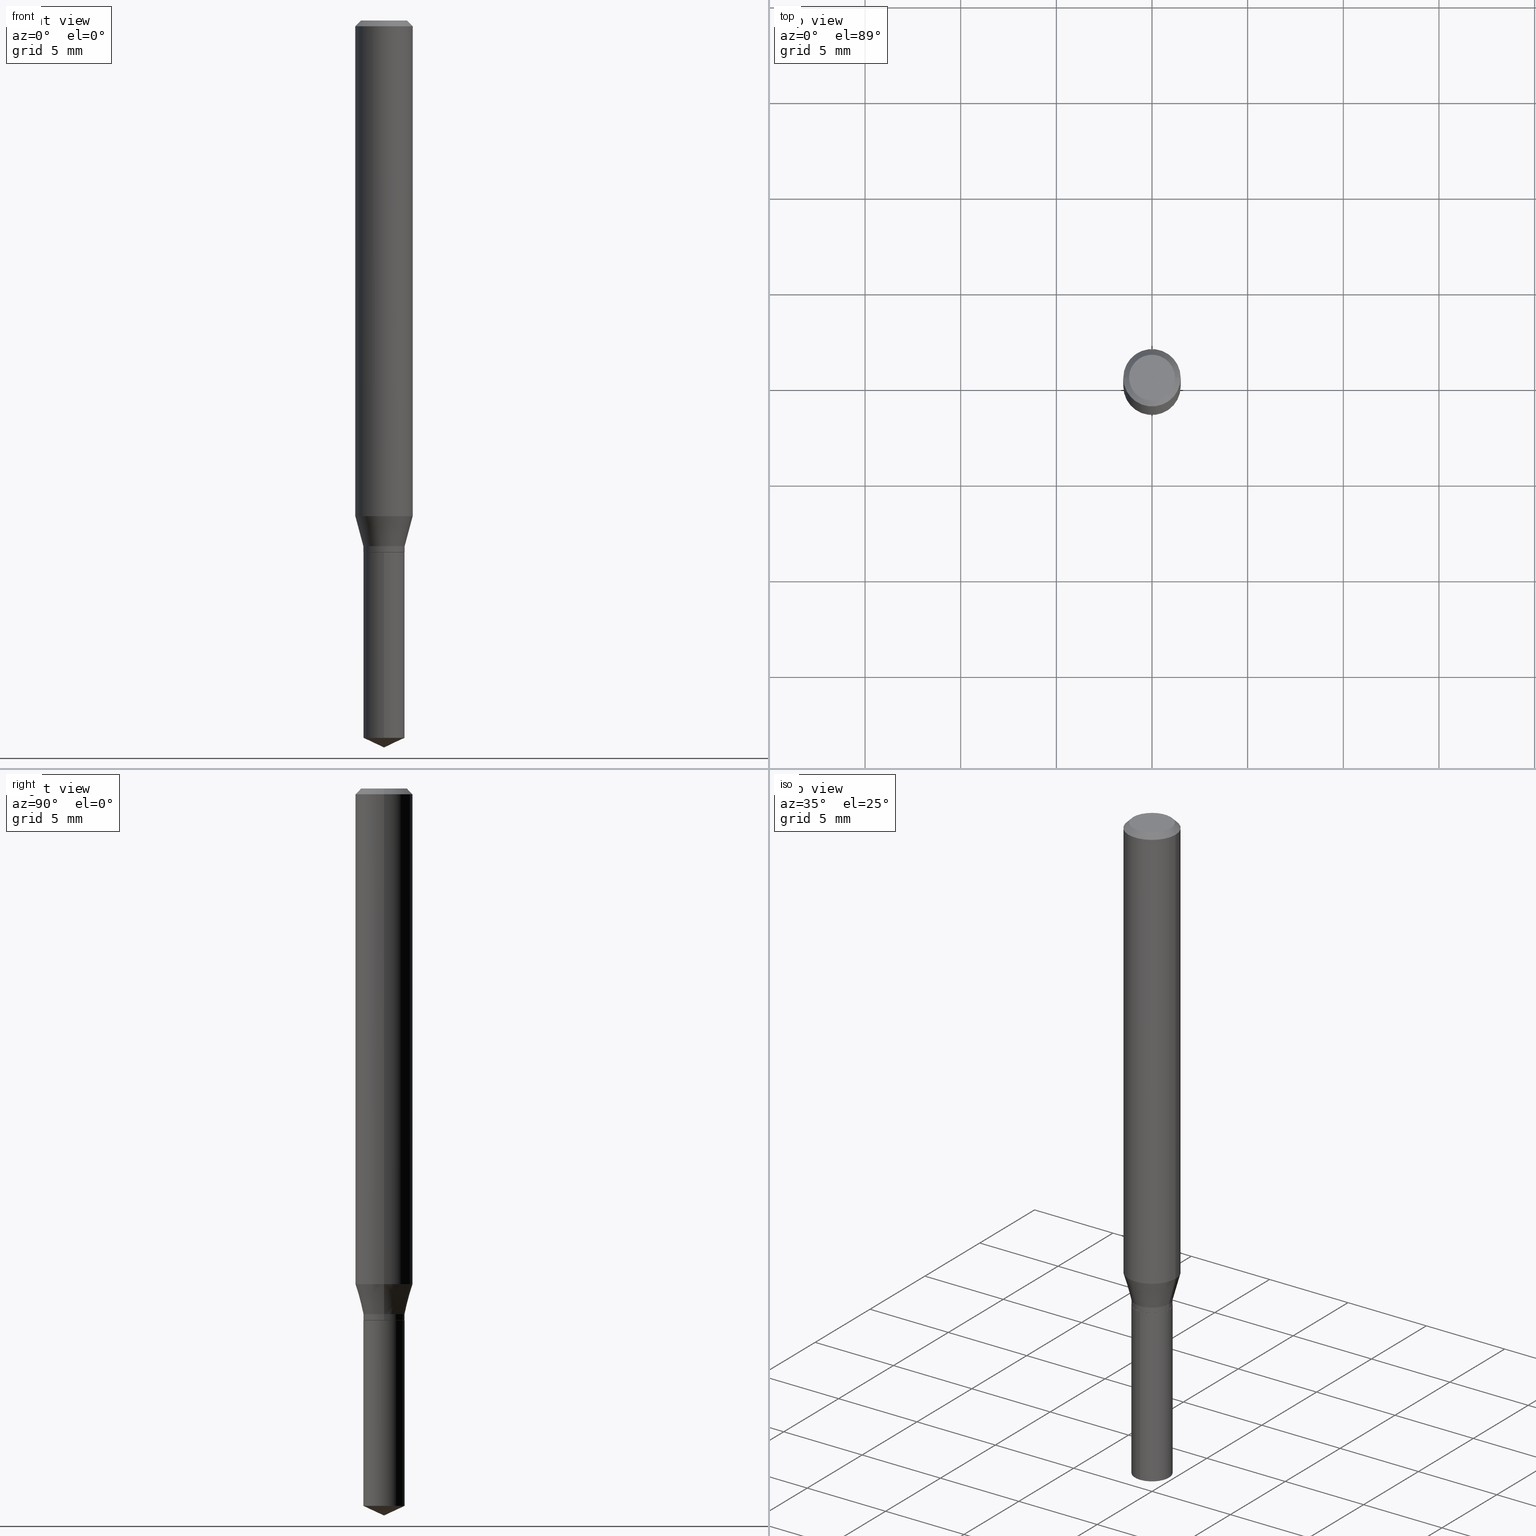
[diagram: canonical four-view strip — front | top / right | iso, engineering-drawing reading convention]
A machine part, canonical four-view strip (front | top / right | iso — engineering-drawing reading convention). The complete STEP part file that produces these views, byte-faithful:
ISO-10303-21;
HEADER;
FILE_DESCRIPTION (( 'STEP AP203' ),
    '1' );
FILE_NAME ('07620.STEP',
    '2024-04-23T23:53:18',
    ( '' ),
    ( '' ),
    'SwSTEP 2.0',
    'SolidWorks 2023',
    '' );
FILE_SCHEMA (( 'CONFIG_CONTROL_DESIGN' ));
ENDSEC;

DATA;
#1 = DIRECTION ( 'NONE',  ( -2.445458899330790108E-29, 3.491495526022433205E-15, 1.000000000000000000 ) ) ;
#2 = CARTESIAN_POINT ( 'NONE',  ( 3.658651059288795076E-29, -5.223626456482161457E-15, -1.496099999999999985 ) ) ;
#3 = FACE_OUTER_BOUND ( 'NONE', #355, .T. ) ;
#4 = VECTOR ( 'NONE', #404, 39.37007874015748143 ) ;
#5 = ADVANCED_FACE ( 'NONE', ( #406 ), #180, .F. ) ;
#6 = AXIS2_PLACEMENT_3D ( 'NONE', #176, #330, #448 ) ;
#7 = EDGE_CURVE ( 'NONE', #72, #115, #229, .T. ) ;
#8 = DIRECTION ( 'NONE',  ( -2.445468806185136597E-29, 3.491481338843145583E-15, 1.000000000000000000 ) ) ;
#9 = ORIENTED_EDGE ( 'NONE', *, *, #102, .T. ) ;
#10 = CARTESIAN_POINT ( 'NONE',  ( 2.676565608369631794E-29, -3.821426325363822773E-15, -1.094499999999999806 ) ) ;
#11 = ORIENTED_EDGE ( 'NONE', *, *, #197, .T. ) ;
#12 = CARTESIAN_POINT ( 'NONE',  ( 2.888098660104663766E-31, -4.123439461173779647E-17, -0.01181000000000007044 ) ) ;
#13 = ADVANCED_FACE ( 'NONE', ( #483 ), #130, .T. ) ;
#14 = LENGTH_MEASURE_WITH_UNIT ( LENGTH_MEASURE( 0.02539999999999999897 ), #196 );
#15 = DIRECTION ( 'NONE',  ( 0.7071067811865455743, -7.319954787623248157E-15, -0.7071067811865493491 ) ) ;
#16 = SECURITY_CLASSIFICATION_LEVEL ( 'unclassified' ) ;
#17 = ORIENTED_EDGE ( 'NONE', *, *, #273, .F. ) ;
#18 = CARTESIAN_POINT ( 'NONE',  ( -9.261924752013118283E-28, 1.322368428517963298E-13, 37.87397874015748300 ) ) ;
#19 = VERTEX_POINT ( 'NONE', #445 ) ;
#20 = CARTESIAN_POINT ( 'NONE',  ( 2.888098660104663766E-31, -4.123439461173779647E-17, -0.01181000000000007044 ) ) ;
#21 = APPROVAL_DATE_TIME ( #405, #424 ) ;
#22 = DIRECTION ( 'NONE',  ( -2.445468806185136597E-29, 3.491481338843145583E-15, 1.000000000000000000 ) ) ;
#23 = CC_DESIGN_PERSON_AND_ORGANIZATION_ASSIGNMENT ( #436, #468, ( #395 ) ) ;
#24 = CARTESIAN_POINT ( 'NONE',  ( 2.888098660104663766E-31, -4.123439461173779647E-17, -0.01181000000000007044 ) ) ;
#25 = EDGE_LOOP ( 'NONE', ( #294, #103, #482, #472 ) ) ;
#26 = DIRECTION ( 'NONE',  ( 1.000000000000000000, -6.982962677686269077E-15, 0.000000000000000000 ) ) ;
#27 = ORIENTED_EDGE ( 'NONE', *, *, #394, .F. ) ;
#28 = FACE_OUTER_BOUND ( 'NONE', #138, .T. ) ;
#29 = EDGE_CURVE ( 'NONE', #115, #72, #42, .T. ) ;
#30 = FACE_OUTER_BOUND ( 'NONE', #25, .T. ) ;
#31 = CARTESIAN_POINT ( 'NONE',  ( 0.05905000000000006771, -4.123439461173745257E-16, 2.879382386107503723E-30 ) ) ;
#32 = DIRECTION ( 'NONE',  ( -6.982962677686266711E-15, -1.000000000000000000, 3.213938816075604088E-15 ) ) ;
#33 = ORIENTED_EDGE ( 'NONE', *, *, #173, .T. ) ;
#34 = CC_DESIGN_APPROVAL ( #59, ( #194 ) ) ;
#35 = DIRECTION ( 'NONE',  ( 1.000000000000000000, -6.982962677686269077E-15, 0.000000000000000000 ) ) ;
#36 = ORIENTED_EDGE ( 'NONE', *, *, #421, .F. ) ;
#37 = ADVANCED_FACE ( 'NONE', ( #205 ), #259, .F. ) ;
#38 = AXIS2_PLACEMENT_3D ( 'NONE', #83, #399, #246 ) ;
#39 = EDGE_LOOP ( 'NONE', ( #134, #433, #316 ) ) ;
#40 = CARTESIAN_POINT ( 'NONE',  ( 8.265746106709734507E-48, -1.180129479067563789E-33, -3.380025165646692144E-19 ) ) ;
#41 = CC_DESIGN_PERSON_AND_ORGANIZATION_ASSIGNMENT ( #317, #281, ( #146 ) ) ;
#42 = CIRCLE ( 'NONE', #475, 0.04249999999999999611 ) ;
#43 = VECTOR ( 'NONE', #335, 39.37007874015748143 ) ;
#44 = LINE ( 'NONE', #434, #200 ) ;
#45 = DIRECTION ( 'NONE',  ( -2.445468806185136597E-29, 3.491481338843145583E-15, 1.000000000000000000 ) ) ;
#46 = CARTESIAN_POINT ( 'NONE',  ( 3.019806626980692740E-16, 0.04249999999999617278, -1.094500000000000028 ) ) ;
#47 = ORIENTED_EDGE ( 'NONE', *, *, #459, .F. ) ;
#48 = CIRCLE ( 'NONE', #268, 0.04249999999999997530 ) ;
#49 = CARTESIAN_POINT ( 'NONE',  ( 0.000000000000000000, 0.000000000000000000, 0.000000000000000000 ) ) ;
#50 = ORIENTED_EDGE ( 'NONE', *, *, #7, .F. ) ;
#51 = LOCAL_TIME ( 19, 53, 18.00000000000000000, #368 ) ;
#52 = DIRECTION ( 'NONE',  ( -2.445468806185136597E-29, 3.491481338843145583E-15, 1.000000000000000000 ) ) ;
#53 = CARTESIAN_POINT ( 'NONE',  ( -0.05905000000000000526, 3.711095515056363040E-16, -0.01181000000000007044 ) ) ;
#54 = PERSON_AND_ORGANIZATION ( #390, #230 ) ;
#55 = EDGE_LOOP ( 'NONE', ( #36, #82, #231, #99 ) ) ;
#56 = DIRECTION ( 'NONE',  ( -6.982962677686266711E-15, -1.000000000000000000, 6.427877632151208176E-15 ) ) ;
#57 = EDGE_CURVE ( 'NONE', #313, #329, #48, .T. ) ;
#58 = FACE_OUTER_BOUND ( 'NONE', #165, .T. ) ;
#59 = APPROVAL ( #94, 'UNSPECIFIED' ) ;
#60 = LINE ( 'NONE', #375, #403 ) ;
#61 = ORIENTED_EDGE ( 'NONE', *, *, #361, .T. ) ;
#62 = DIRECTION ( 'NONE',  ( 1.000000000000000000, -6.982962677686269077E-15, 0.000000000000000000 ) ) ;
#63 = CONICAL_SURFACE ( 'NONE', #155, 84.42940631927510253, 1.134464013796319337 ) ;
#64 = LOCAL_TIME ( 19, 53, 18.00000000000000000, #203 ) ;
#65 = ORIENTED_EDGE ( 'NONE', *, *, #264, .F. ) ;
#66 = DIRECTION ( 'NONE',  ( -0.2588190451025214611, 5.211531920934551042E-15, 0.9659258262890682012 ) ) ;
#67 = ORIENTED_EDGE ( 'NONE', *, *, #273, .T. ) ;
#68 = DIRECTION ( 'NONE',  ( -2.445458899330790108E-29, 3.491495526022433205E-15, 1.000000000000000000 ) ) ;
#69 = APPLICATION_CONTEXT ( 'configuration controlled 3d designs of mechanical parts and assemblies' ) ;
#70 = CC_DESIGN_PERSON_AND_ORGANIZATION_ASSIGNMENT ( #359, #312, ( #194 ) ) ;
#71 = LINE ( 'NONE', #31, #80 ) ;
#72 = VERTEX_POINT ( 'NONE', #382 ) ;
#73 = CYLINDRICAL_SURFACE ( 'NONE', #280, 0.04249999999999999611 ) ;
#74 = AXIS2_PLACEMENT_3D ( 'NONE', #252, #223, #91 ) ;
#75 = CONICAL_SURFACE ( 'NONE', #461, 0.04199999999999999567, 0.7853981633973970977 ) ;
#76 = CYLINDRICAL_SURFACE ( 'NONE', #101, 0.04249999999999999611 ) ;
#77 = ADVANCED_FACE ( 'NONE', ( #490 ), #111, .T. ) ;
#78 = AXIS2_PLACEMENT_3D ( 'NONE', #135, #326, #26 ) ;
#79 = AXIS2_PLACEMENT_3D ( 'NONE', #358, #114, #467 ) ;
#80 = VECTOR ( 'NONE', #179, 39.37007874015748143 ) ;
#81 = VERTEX_POINT ( 'NONE', #380 ) ;
#82 = ORIENTED_EDGE ( 'NONE', *, *, #425, .T. ) ;
#83 = CARTESIAN_POINT ( 'NONE',  ( 2.888098660104663766E-31, -4.123439461173779647E-17, -0.01181000000000007044 ) ) ;
#84 = DATE_AND_TIME ( #446, #307 ) ;
#85 = ADVANCED_FACE ( 'NONE', ( #30 ), #292, .T. ) ;
#86 = DATE_TIME_ROLE ( 'creation_date' ) ;
#87 = CARTESIAN_POINT ( 'NONE',  ( -2.967759138016302152E-16, -0.04250000000000515865, -1.476281924528412448 ) ) ;
#88 = CARTESIAN_POINT ( 'NONE',  ( 3.658672935554494692E-29, -5.223595400746700193E-15, -1.496099999999999985 ) ) ;
#89 = APPLICATION_PROTOCOL_DEFINITION ( 'international standard', 'config_control_design', 1994, #233 ) ;
#90 = EDGE_LOOP ( 'NONE', ( #33, #255, #369, #353 ) ) ;
#91 = DIRECTION ( 'NONE',  ( -1.000000000000000000, 6.982962677686265922E-15, -4.876176775795935793E-29 ) ) ;
#92 = DIRECTION ( 'NONE',  ( -0.7071067811865112684, 7.493145998870223209E-15, 0.7071067811865837660 ) ) ;
#93 = DIRECTION ( 'NONE',  ( -2.445468806185136597E-29, 3.491481338843145583E-15, 1.000000000000000000 ) ) ;
#94 = APPROVAL_STATUS ( 'not_yet_approved' ) ;
#95 = ORIENTED_EDGE ( 'NONE', *, *, #234, .T. ) ;
#96 = ORIENTED_EDGE ( 'NONE', *, *, #29, .T. ) ;
#97 = CALENDAR_DATE ( 2024, 23, 4 ) ;
#98 = ORIENTED_EDGE ( 'NONE', *, *, #463, .F. ) ;
#99 = ORIENTED_EDGE ( 'NONE', *, *, #234, .F. ) ;
#100 = VECTOR ( 'NONE', #66, 39.37007874015747433 ) ;
#101 = AXIS2_PLACEMENT_3D ( 'NONE', #381, #347, #32 ) ;
#102 = EDGE_CURVE ( 'NONE', #329, #129, #60, .T. ) ;
#103 = ORIENTED_EDGE ( 'NONE', *, *, #386, .T. ) ;
#104 = CARTESIAN_POINT ( 'NONE',  ( 3.610197613311274720E-29, -5.154416206771010619E-15, -1.476281924528412670 ) ) ;
#105 = DIRECTION ( 'NONE',  ( -2.445458899330790108E-29, 3.491495526022433205E-15, 1.000000000000000000 ) ) ;
#106 = CLOSED_SHELL ( 'NONE', ( #338, #250, #77, #332, #183 ) ) ;
#107 = VECTOR ( 'NONE', #449, 39.37007874015748143 ) ;
#108 = FACE_OUTER_BOUND ( 'NONE', #218, .T. ) ;
#109 = ADVANCED_FACE ( 'NONE', ( #178 ), #289, .T. ) ;
#110 = DIRECTION ( 'NONE',  ( 1.000000000000000000, -6.982962677686266711E-15, 4.876176775795936353E-29 ) ) ;
#111 = CONICAL_SURFACE ( 'NONE', #6, 84.42940631927510253, 1.134464013796319337 ) ;
#112 = CIRCLE ( 'NONE', #428, 0.04199999999999999567 ) ;
#113 = PRODUCT_RELATED_PRODUCT_CATEGORY ( 'detail', '', ( #395 ) ) ;
#114 = DIRECTION ( 'NONE',  ( -2.445468806185136597E-29, 3.491481338843145583E-15, 1.000000000000000000 ) ) ;
#115 = VERTEX_POINT ( 'NONE', #87 ) ;
#116 = APPROVAL_PERSON_ORGANIZATION ( #354, #424, #328 ) ;
#117 = MANIFOLD_SOLID_BREP ( 'Body-Move/Copy2[1]', #106 ) ;
#118 = LINE ( 'NONE', #274, #348 ) ;
#119 = DATE_AND_TIME ( #244, #343 ) ;
#120 = DIRECTION ( 'NONE',  ( 1.000000000000000000, -6.982962677686267499E-15, 0.000000000000000000 ) ) ;
#121 = DIRECTION ( 'NONE',  ( -2.445468806185136597E-29, 3.491481338843145583E-15, 1.000000000000000000 ) ) ;
#122 = DATE_AND_TIME ( #412, #64 ) ;
#123 = CARTESIAN_POINT ( 'NONE',  ( 2.676565608369631794E-29, -3.821426325363822773E-15, -1.094499999999999806 ) ) ;
#124 = DIRECTION ( 'NONE',  ( -2.445458899330790108E-29, 3.491495526022433599E-15, 1.000000000000000000 ) ) ;
#125 = AXIS2_PLACEMENT_3D ( 'NONE', #480, #147, #340 ) ;
#126 = ORIENTED_EDGE ( 'NONE', *, *, #141, .F. ) ;
#127 = DIRECTION ( 'NONE',  ( -1.000000000000000000, 6.982962677686267499E-15, 0.000000000000000000 ) ) ;
#128 = DIRECTION ( 'NONE',  ( 1.000000000000000000, 0.000000000000000000, 0.000000000000000000 ) ) ;
#129 = VERTEX_POINT ( 'NONE', #170 ) ;
#130 = CYLINDRICAL_SURFACE ( 'NONE', #391, 0.05905000000000006771 ) ;
#131 = CARTESIAN_POINT ( 'NONE',  ( 2.494218148714182999E-29, -3.561082480060135874E-15, -1.019934559134734409 ) ) ;
#132 = APPROVAL ( #133, 'UNSPECIFIED' ) ;
#133 = APPROVAL_STATUS ( 'not_yet_approved' ) ;
#134 = ORIENTED_EDGE ( 'NONE', *, *, #320, .F. ) ;
#135 = CARTESIAN_POINT ( 'NONE',  ( 2.645263607650461570E-29, -3.776735364226629915E-15, -1.081699999999999884 ) ) ;
#136 = ADVANCED_FACE ( 'NONE', ( #334 ), #262, .T. ) ;
#137 = FACE_OUTER_BOUND ( 'NONE', #55, .T. ) ;
#138 = EDGE_LOOP ( 'NONE', ( #344, #397, #9, #426 ) ) ;
#139 = CARTESIAN_POINT ( 'NONE',  ( -0.04249999999999998224, -3.496227311762473140E-15, -1.093999999999999861 ) ) ;
#140 = DIRECTION ( 'NONE',  ( 0.2588190451025214611, 1.565188264969621573E-15, 0.9659258262890682012 ) ) ;
#141 = EDGE_CURVE ( 'NONE', #195, #81, #168, .T. ) ;
#142 = DIRECTION ( 'NONE',  ( -6.982962677686266711E-15, -1.000000000000000000, 3.213938816075604088E-15 ) ) ;
#143 = CYLINDRICAL_SURFACE ( 'NONE', #243, 0.05905000000000006771 ) ;
#144 = AXIS2_PLACEMENT_3D ( 'NONE', #283, #365, #417 ) ;
#145 = AXIS2_PLACEMENT_3D ( 'NONE', #227, #186, #339 ) ;
#146 = PRODUCT_DEFINITION ( 'UNKNOWN', '', #194, #267 ) ;
#147 = DIRECTION ( 'NONE',  ( -2.445468806185136597E-29, 3.491481338843145583E-15, 1.000000000000000000 ) ) ;
#148 = ADVANCED_BREP_SHAPE_REPRESENTATION ( '07620', ( #117, #295, #423 ), #443 ) ;
#149 = AXIS2_PLACEMENT_3D ( 'NONE', #451, #215, #410 ) ;
#150 = CARTESIAN_POINT ( 'NONE',  ( 0.04249999999999997530, -4.073511278028295777E-15, -1.081699999999999884 ) ) ;
#151 = ADVANCED_FACE ( 'NONE', ( #3 ), #143, .T. ) ;
#152 = EDGE_LOOP ( 'NONE', ( #248, #239 ) ) ;
#153 = DIMENSIONAL_EXPONENTS ( 1.000000000000000000, 0.000000000000000000, 0.000000000000000000, 0.000000000000000000, 0.000000000000000000, 0.000000000000000000, 0.000000000000000000 ) ;
#154 = VERTEX_POINT ( 'NONE', #437 ) ;
#155 = AXIS2_PLACEMENT_3D ( 'NONE', #18, #253, #163 ) ;
#156 = COORDINATED_UNIVERSAL_TIME_OFFSET ( 5, 0, .BEHIND. ) ;
#157 = CARTESIAN_POINT ( 'NONE',  ( 0.04199999999999999567, -4.114710757826645628E-15, -1.094499999999999806 ) ) ;
#158 = FACE_OUTER_BOUND ( 'NONE', #360, .T. ) ;
#159 = COORDINATED_UNIVERSAL_TIME_OFFSET ( 5, 0, .BEHIND. ) ;
#160 = VERTEX_POINT ( 'NONE', #240 ) ;
#161 = DIRECTION ( 'NONE',  ( -2.445468806185136597E-29, 3.491481338843145583E-15, 1.000000000000000000 ) ) ;
#162 = CARTESIAN_POINT ( 'NONE',  ( 3.658651059288794515E-29, -5.223626456482161457E-15, -1.496099999999999985 ) ) ;
#163 = DIRECTION ( 'NONE',  ( -6.982962677686268288E-15, -1.000000000000000000, 3.520397390770421921E-15 ) ) ;
#164 = APPROVAL_ROLE ( '' ) ;
#165 = EDGE_LOOP ( 'NONE', ( #175, #261 ) ) ;
#166 = CARTESIAN_POINT ( 'NONE',  ( 3.610197613311274720E-29, -5.154416206771010619E-15, -1.476281924528412670 ) ) ;
#167 = LINE ( 'NONE', #287, #305 ) ;
#168 = CIRCLE ( 'NONE', #125, 0.04199999999999999567 ) ;
#169 = PERSON_AND_ORGANIZATION ( #390, #230 ) ;
#170 = CARTESIAN_POINT ( 'NONE',  ( 0.05905000000000013016, -3.973426426177510794E-15, -1.019934559134734409 ) ) ;
#171 = CIRCLE ( 'NONE', #182, 0.05905000000000000526 ) ;
#172 = CARTESIAN_POINT ( 'NONE',  ( -0.04249999999999997530, 3.019806626980424035E-16, -2.090547413358333808E-30 ) ) ;
#173 = EDGE_CURVE ( 'NONE', #329, #313, #357, .T. ) ;
#174 = APPLICATION_PROTOCOL_DEFINITION ( 'international standard', 'config_control_design', 1994, #69 ) ;
#175 = ORIENTED_EDGE ( 'NONE', *, *, #463, .T. ) ;
#176 = CARTESIAN_POINT ( 'NONE',  ( -9.261924752013118283E-28, 1.322368428517963298E-13, 37.87397874015748300 ) ) ;
#177 = EDGE_LOOP ( 'NONE', ( #374, #11, #352, #189 ) ) ;
#178 = FACE_OUTER_BOUND ( 'NONE', #473, .T. ) ;
#179 = DIRECTION ( 'NONE',  ( -2.445468806185136877E-29, 3.491481338843145188E-15, 1.000000000000000000 ) ) ;
#180 = PLANE ( 'NONE',  #144 ) ;
#181 = CLOSED_SHELL ( 'NONE', ( #85, #241, #13, #136, #435, #109, #315, #151, #190, #37, #5, #420 ) ) ;
#182 = AXIS2_PLACEMENT_3D ( 'NONE', #20, #309, #120 ) ;
#183 = ADVANCED_FACE ( 'NONE', ( #58 ), #402, .F. ) ;
#184 = CARTESIAN_POINT ( 'NONE',  ( 2.675342873966538993E-29, -3.819680584694400481E-15, -1.093999999999999861 ) ) ;
#185 = EDGE_CURVE ( 'NONE', #195, #160, #44, .T. ) ;
#186 = DIRECTION ( 'NONE',  ( -2.445468806185136597E-29, 3.491481338843145583E-15, 1.000000000000000000 ) ) ;
#187 = CIRCLE ( 'NONE', #225, 0.04249999999999998224 ) ;
#188 = CC_DESIGN_SECURITY_CLASSIFICATION ( #393, ( #194 ) ) ;
#189 = ORIENTED_EDGE ( 'NONE', *, *, #479, .F. ) ;
#190 = ADVANCED_FACE ( 'NONE', ( #398 ), #296, .T. ) ;
#191 = ORIENTED_EDGE ( 'NONE', *, *, #228, .F. ) ;
#192 = ORIENTED_EDGE ( 'NONE', *, *, #7, .T. ) ;
#193 = VERTEX_POINT ( 'NONE', #356 ) ;
#194 = PRODUCT_DEFINITION_FORMATION_WITH_SPECIFIED_SOURCE ( 'ANY', '', #395, .NOT_KNOWN. ) ;
#195 = VERTEX_POINT ( 'NONE', #157 ) ;
#196 =( LENGTH_UNIT ( ) NAMED_UNIT ( * ) SI_UNIT ( $, .METRE. ) );
#197 = EDGE_CURVE ( 'NONE', #409, #485, #310, .T. ) ;
#198 = COORDINATED_UNIVERSAL_TIME_OFFSET ( 5, 0, .BEHIND. ) ;
#199 = DIRECTION ( 'NONE',  ( -1.000000000000000000, 6.982962677686267499E-15, 0.000000000000000000 ) ) ;
#200 = VECTOR ( 'NONE', #465, 39.37007874015748143 ) ;
#201 = AXIS2_PLACEMENT_3D ( 'NONE', #401, #52, #206 ) ;
#202 = DIRECTION ( 'NONE',  ( -0.7071067811865455743, 2.468850131082236945E-15, -0.7071067811865493491 ) ) ;
#203 = COORDINATED_UNIVERSAL_TIME_OFFSET ( 5, 0, .BEHIND. ) ;
#204 = VERTEX_POINT ( 'NONE', #139 ) ;
#205 = FACE_OUTER_BOUND ( 'NONE', #152, .T. ) ;
#206 = DIRECTION ( 'NONE',  ( 1.000000000000000000, -6.982962677686265133E-15, 0.000000000000000000 ) ) ;
#207 = CARTESIAN_POINT ( 'NONE',  ( 2.676565608369631794E-29, -3.821426325363822773E-15, -1.094499999999999806 ) ) ;
#208 = DIRECTION ( 'NONE',  ( 6.439704144417040608E-15, 0.9063077870366536004, 0.4226182617406916142 ) ) ;
#209 = APPROVAL_DATE_TIME ( #119, #132 ) ;
#210 = CARTESIAN_POINT ( 'NONE',  ( 0.000000000000000000, 0.000000000000000000, 0.000000000000000000 ) ) ;
#211 = EDGE_CURVE ( 'NONE', #154, #19, #342, .T. ) ;
#212 = DIRECTION ( 'NONE',  ( -6.982962677686266711E-15, -1.000000000000000000, 3.213938816075604088E-15 ) ) ;
#213 = AXIS2_PLACEMENT_3D ( 'NONE', #456, #105, #419 ) ;
#214 = DATE_TIME_ROLE ( 'classification_date' ) ;
#215 = DIRECTION ( 'NONE',  ( -2.445468806185136597E-29, 3.491481338843145583E-15, 1.000000000000000000 ) ) ;
#216 = AXIS2_PLACEMENT_3D ( 'NONE', #40, #278, #331 ) ;
#217 = CARTESIAN_POINT ( 'NONE',  ( -0.05905000000000013016, -3.141506994593796381E-15, -1.019934559134734409 ) ) ;
#218 = EDGE_LOOP ( 'NONE', ( #96, #325, #98, #333 ) ) ;
#219 = CARTESIAN_POINT ( 'NONE',  ( -0.04249999999999997530, -3.496227311762473140E-15, -1.081699999999999884 ) ) ;
#220 = ORIENTED_EDGE ( 'NONE', *, *, #351, .T. ) ;
#221 = DIRECTION ( 'NONE',  ( -2.445468806185136597E-29, 3.491481338843145583E-15, 1.000000000000000000 ) ) ;
#222 = EDGE_CURVE ( 'NONE', #160, #204, #187, .T. ) ;
#223 = DIRECTION ( 'NONE',  ( 2.438088387897960049E-29, -3.491481338843145188E-15, -1.000000000000000000 ) ) ;
#224 = EDGE_CURVE ( 'NONE', #72, #154, #396, .T. ) ;
#225 = AXIS2_PLACEMENT_3D ( 'NONE', #184, #238, #464 ) ;
#226 = CC_DESIGN_APPROVAL ( #132, ( #146 ) ) ;
#227 = CARTESIAN_POINT ( 'NONE',  ( 2.675342873966538993E-29, -3.819680584694400481E-15, -1.093999999999999861 ) ) ;
#228 = EDGE_CURVE ( 'NONE', #160, #329, #291, .T. ) ;
#229 = CIRCLE ( 'NONE', #383, 0.04249999999999999611 ) ;
#230 = ORGANIZATION ( 'UNSPECIFIED', 'UNSPECIFIED', '' ) ;
#231 = ORIENTED_EDGE ( 'NONE', *, *, #363, .T. ) ;
#232 =( CONVERSION_BASED_UNIT ( 'INCH', #14 ) LENGTH_UNIT ( ) NAMED_UNIT ( #153 ) );
#233 = APPLICATION_CONTEXT ( 'configuration controlled 3d designs of mechanical parts and assemblies' ) ;
#234 = EDGE_CURVE ( 'NONE', #377, #485, #327, .T. ) ;
#235 = ORIENTED_EDGE ( 'NONE', *, *, #361, .F. ) ;
#236 = UNCERTAINTY_MEASURE_WITH_UNIT (LENGTH_MEASURE( 1.000000000000000082E-05 ), #232, 'distance_accuracy_value', 'NONE');
#237 = CIRCLE ( 'NONE', #384, 0.04249999999999999611 ) ;
#238 = DIRECTION ( 'NONE',  ( -2.445468806185136597E-29, 3.491481338843145583E-15, 1.000000000000000000 ) ) ;
#239 = ORIENTED_EDGE ( 'NONE', *, *, #421, .T. ) ;
#240 = CARTESIAN_POINT ( 'NONE',  ( 0.04249999999999998224, -4.116456498496067132E-15, -1.093999999999999861 ) ) ;
#241 = ADVANCED_FACE ( 'NONE', ( #137 ), #414, .T. ) ;
#242 = PERSON_AND_ORGANIZATION_ROLE ( 'design_supplier' ) ;
#243 = AXIS2_PLACEMENT_3D ( 'NONE', #388, #460, #110 ) ;
#244 = CALENDAR_DATE ( 2024, 23, 4 ) ;
#245 = DIRECTION ( 'NONE',  ( 1.000000000000000000, -6.982962677686266711E-15, 4.876176775795936353E-29 ) ) ;
#246 = DIRECTION ( 'NONE',  ( 1.000000000000000000, -6.982962677686267499E-15, 0.000000000000000000 ) ) ;
#247 = DATE_AND_TIME ( #400, #323 ) ;
#248 = ORIENTED_EDGE ( 'NONE', *, *, #459, .T. ) ;
#249 = DIRECTION ( 'NONE',  ( -2.445468806185136597E-29, 3.491481338843145583E-15, 1.000000000000000000 ) ) ;
#250 = ADVANCED_FACE ( 'NONE', ( #481 ), #63, .T. ) ;
#251 = APPROVAL_ROLE ( '' ) ;
#252 = CARTESIAN_POINT ( 'NONE',  ( 4.132873053354867254E-48, -5.900647395337818946E-34, -1.690012582823346072E-19 ) ) ;
#253 = DIRECTION ( 'NONE',  ( -2.445458899330790108E-29, 3.491495526022433205E-15, 1.000000000000000000 ) ) ;
#254 = AXIS2_PLACEMENT_3D ( 'NONE', #271, #314, #350 ) ;
#255 = ORIENTED_EDGE ( 'NONE', *, *, #302, .T. ) ;
#256 = ORIENTED_EDGE ( 'NONE', *, *, #351, .F. ) ;
#257 = DIRECTION ( 'NONE',  ( -2.445458899330790108E-29, 3.491495526022433205E-15, 1.000000000000000000 ) ) ;
#258 = ORIENTED_EDGE ( 'NONE', *, *, #222, .T. ) ;
#259 = PLANE ( 'NONE',  #74 ) ;
#260 = CARTESIAN_POINT ( 'NONE',  ( 2.645263607650461570E-29, -3.776735364226629915E-15, -1.081699999999999884 ) ) ;
#261 = ORIENTED_EDGE ( 'NONE', *, *, #211, .T. ) ;
#262 = CONICAL_SURFACE ( 'NONE', #78, 0.04249999999999997530, 0.2617993877991501295 ) ;
#263 = AXIS2_PLACEMENT_3D ( 'NONE', #260, #8, #35 ) ;
#264 = EDGE_CURVE ( 'NONE', #484, #72, #279, .T. ) ;
#265 =( NAMED_UNIT ( * ) PLANE_ANGLE_UNIT ( ) SI_UNIT ( $, .RADIAN. ) );
#266 = ORIENTED_EDGE ( 'NONE', *, *, #386, .F. ) ;
#267 = DESIGN_CONTEXT ( 'detailed design', #233, 'design' ) ;
#268 = AXIS2_PLACEMENT_3D ( 'NONE', #413, #249, #62 ) ;
#269 = CARTESIAN_POINT ( 'NONE',  ( 2.676565608369631794E-29, -3.821426325363822773E-15, -1.094499999999999806 ) ) ;
#270 = ORIENTED_EDGE ( 'NONE', *, *, #185, .T. ) ;
#271 = CARTESIAN_POINT ( 'NONE',  ( 2.645263607650461570E-29, -3.776735364226629915E-15, -1.081699999999999884 ) ) ;
#272 = VECTOR ( 'NONE', #202, 39.37007874015748854 ) ;
#273 = EDGE_CURVE ( 'NONE', #485, #193, #336, .T. ) ;
#274 = CARTESIAN_POINT ( 'NONE',  ( 0.05905000000000000526, -4.463468013801467941E-16, -0.01181000000000007044 ) ) ;
#275 = DIRECTION ( 'NONE',  ( 0.000000000000000000, 0.000000000000000000, 1.000000000000000000 ) ) ;
#276 = ORIENTED_EDGE ( 'NONE', *, *, #301, .T. ) ;
#277 = AXIS2_PLACEMENT_3D ( 'NONE', #207, #429, #392 ) ;
#278 = DIRECTION ( 'NONE',  ( -2.445468806185136597E-29, 3.491481338843145583E-15, 1.000000000000000000 ) ) ;
#279 = LINE ( 'NONE', #88, #427 ) ;
#280 = AXIS2_PLACEMENT_3D ( 'NONE', #269, #1, #142 ) ;
#281 = PERSON_AND_ORGANIZATION_ROLE ( 'creator' ) ;
#282 = VERTEX_POINT ( 'NONE', #367 ) ;
#283 = CARTESIAN_POINT ( 'NONE',  ( 2.676565608369631794E-29, -3.821426325363822773E-15, -1.094499999999999806 ) ) ;
#284 = ORIENTED_EDGE ( 'NONE', *, *, #320, .T. ) ;
#285 = EDGE_LOOP ( 'NONE', ( #266, #61, #270, #256 ) ) ;
#286 = LINE ( 'NONE', #319, #458 ) ;
#287 = CARTESIAN_POINT ( 'NONE',  ( -2.967759138016395336E-16, -0.04250000000000382638, -1.094499999999999806 ) ) ;
#288 = PERSON_AND_ORGANIZATION ( #390, #230 ) ;
#289 = CYLINDRICAL_SURFACE ( 'NONE', #442, 0.04249999999999997530 ) ;
#290 = EDGE_CURVE ( 'NONE', #129, #409, #306, .T. ) ;
#291 = LINE ( 'NONE', #470, #4 ) ;
#292 = CONICAL_SURFACE ( 'NONE', #149, 0.04199999999999999567, 0.7853981633973970977 ) ;
#293 = CIRCLE ( 'NONE', #79, 0.04724000000000000421 ) ;
#294 = ORIENTED_EDGE ( 'NONE', *, *, #141, .T. ) ;
#295 = MANIFOLD_SOLID_BREP ( 'Body-Move/Copy2[2]', #181 ) ;
#296 = CONICAL_SURFACE ( 'NONE', #422, 0.05905000000000000526, 0.7853981633974456145 ) ;
#297 = CIRCLE ( 'NONE', #201, 0.05905000000000013016 ) ;
#298 = ORIENTED_EDGE ( 'NONE', *, *, #224, .F. ) ;
#299 = CC_DESIGN_PERSON_AND_ORGANIZATION_ASSIGNMENT ( #169, #471, ( #393 ) ) ;
#300 = PRODUCT_DEFINITION_SHAPE ( 'NONE', 'NONE',  #146 ) ;
#301 = EDGE_CURVE ( 'NONE', #115, #19, #167, .T. ) ;
#302 = EDGE_CURVE ( 'NONE', #313, #409, #450, .T. ) ;
#303 = ORIENTED_EDGE ( 'NONE', *, *, #173, .F. ) ;
#304 = DIRECTION ( 'NONE',  ( 2.445468806185136597E-29, -3.491481338843145583E-15, -1.000000000000000000 ) ) ;
#305 = VECTOR ( 'NONE', #322, 39.37007874015748143 ) ;
#306 = CIRCLE ( 'NONE', #487, 0.05905000000000013016 ) ;
#307 = LOCAL_TIME ( 19, 53, 18.00000000000000000, #156 ) ;
#308 = APPROVAL_STATUS ( 'not_yet_approved' ) ;
#309 = DIRECTION ( 'NONE',  ( -2.445468806185136597E-29, 3.491481338843145583E-15, 1.000000000000000000 ) ) ;
#310 = LINE ( 'NONE', #385, #371 ) ;
#311 = CYLINDRICAL_SURFACE ( 'NONE', #432, 0.04249999999999997530 ) ;
#312 = PERSON_AND_ORGANIZATION_ROLE ( 'creator' ) ;
#313 = VERTEX_POINT ( 'NONE', #219 ) ;
#314 = DIRECTION ( 'NONE',  ( -2.445468806185136597E-29, 3.491481338843145583E-15, 1.000000000000000000 ) ) ;
#315 = ADVANCED_FACE ( 'NONE', ( #28 ), #476, .T. ) ;
#316 = ORIENTED_EDGE ( 'NONE', *, *, #29, .F. ) ;
#317 = PERSON_AND_ORGANIZATION ( #390, #230 ) ;
#318 = CARTESIAN_POINT ( 'NONE',  ( 0.000000000000000000, 0.000000000000000000, 0.000000000000000000 ) ) ;
#319 = CARTESIAN_POINT ( 'NONE',  ( -0.04199999999999999567, -3.522998376344580430E-15, -1.094499999999999806 ) ) ;
#320 = EDGE_CURVE ( 'NONE', #484, #115, #457, .T. ) ;
#321 = CARTESIAN_POINT ( 'NONE',  ( -0.05905000000000000526, -1.381582951869596914E-15, -0.01181000000000007044 ) ) ;
#322 = DIRECTION ( 'NONE',  ( -2.445458899330790108E-29, 3.491495526022433599E-15, 1.000000000000000000 ) ) ;
#323 = LOCAL_TIME ( 19, 53, 18.00000000000000000, #198 ) ;
#324 = SHAPE_DEFINITION_REPRESENTATION ( #300, #148 ) ;
#325 = ORIENTED_EDGE ( 'NONE', *, *, #224, .T. ) ;
#326 = DIRECTION ( 'NONE',  ( -2.445468806185136597E-29, 3.491481338843145583E-15, 1.000000000000000000 ) ) ;
#327 = LINE ( 'NONE', #53, #272 ) ;
#328 = APPROVAL_ROLE ( '' ) ;
#329 = VERTEX_POINT ( 'NONE', #150 ) ;
#330 = DIRECTION ( 'NONE',  ( -2.445458899330790108E-29, 3.491495526022433205E-15, 1.000000000000000000 ) ) ;
#331 = DIRECTION ( 'NONE',  ( 1.000000000000000000, -6.982962677686266711E-15, 4.876185090822587894E-29 ) ) ;
#332 = ADVANCED_FACE ( 'NONE', ( #462 ), #73, .T. ) ;
#333 = ORIENTED_EDGE ( 'NONE', *, *, #301, .F. ) ;
#334 = FACE_OUTER_BOUND ( 'NONE', #90, .T. ) ;
#335 = DIRECTION ( 'NONE',  ( -6.328713451373385156E-15, -0.9063077870366507138, 0.4226182617406979425 ) ) ;
#336 = CIRCLE ( 'NONE', #38, 0.05905000000000000526 ) ;
#337 = DIRECTION ( 'NONE',  ( -6.982962677686266711E-15, -1.000000000000000000, 6.427877632151208176E-15 ) ) ;
#338 = ADVANCED_FACE ( 'NONE', ( #108 ), #76, .T. ) ;
#339 = DIRECTION ( 'NONE',  ( 1.000000000000000000, -6.982962677686267499E-15, 0.000000000000000000 ) ) ;
#340 = DIRECTION ( 'NONE',  ( 1.000000000000000000, -6.982962677686263555E-15, 0.000000000000000000 ) ) ;
#341 = CC_DESIGN_DATE_AND_TIME_ASSIGNMENT ( #247, #214, ( #393 ) ) ;
#342 = CIRCLE ( 'NONE', #213, 0.04249999999999999611 ) ;
#343 = LOCAL_TIME ( 19, 53, 18.00000000000000000, #159 ) ;
#344 = ORIENTED_EDGE ( 'NONE', *, *, #302, .F. ) ;
#345 = DIRECTION ( 'NONE',  ( 1.000000000000000000, -6.982962677686263555E-15, 0.000000000000000000 ) ) ;
#346 = AXIS2_PLACEMENT_3D ( 'NONE', #24, #362, #127 ) ;
#347 = DIRECTION ( 'NONE',  ( -2.445458899330790108E-29, 3.491495526022433205E-15, 1.000000000000000000 ) ) ;
#348 = VECTOR ( 'NONE', #15, 39.37007874015748854 ) ;
#349 = CC_DESIGN_DATE_AND_TIME_ASSIGNMENT ( #84, #86, ( #146 ) ) ;
#350 = DIRECTION ( 'NONE',  ( 1.000000000000000000, -6.982962677686269077E-15, 0.000000000000000000 ) ) ;
#351 = EDGE_CURVE ( 'NONE', #204, #160, #387, .T. ) ;
#352 = ORIENTED_EDGE ( 'NONE', *, *, #363, .F. ) ;
#353 = ORIENTED_EDGE ( 'NONE', *, *, #102, .F. ) ;
#354 = PERSON_AND_ORGANIZATION ( #390, #230 ) ;
#355 = EDGE_LOOP ( 'NONE', ( #466, #444, #477, #17 ) ) ;
#356 = CARTESIAN_POINT ( 'NONE',  ( 0.05905000000000000526, -4.535783407291118600E-16, -0.01181000000000007044 ) ) ;
#357 = CIRCLE ( 'NONE', #254, 0.04249999999999997530 ) ;
#358 = CARTESIAN_POINT ( 'NONE',  ( 8.265746106709734507E-48, -1.180129479067563789E-33, -3.380025165646692144E-19 ) ) ;
#359 = PERSON_AND_ORGANIZATION ( #390, #230 ) ;
#360 = EDGE_LOOP ( 'NONE', ( #258, #454, #303, #191 ) ) ;
#361 = EDGE_CURVE ( 'NONE', #81, #195, #112, .T. ) ;
#362 = DIRECTION ( 'NONE',  ( 2.445468806185136597E-29, -3.491481338843145583E-15, -1.000000000000000000 ) ) ;
#363 = EDGE_CURVE ( 'NONE', #193, #485, #171, .T. ) ;
#364 = PERSON_AND_ORGANIZATION ( #390, #230 ) ;
#365 = DIRECTION ( 'NONE',  ( -2.438088387897960049E-29, 3.491481338843145188E-15, 1.000000000000000000 ) ) ;
#366 = ORIENTED_EDGE ( 'NONE', *, *, #211, .F. ) ;
#367 = CARTESIAN_POINT ( 'NONE',  ( 0.04724000000000000421, -3.852183633974369838E-16, -3.380025165621689721E-19 ) ) ;
#368 = COORDINATED_UNIVERSAL_TIME_OFFSET ( 5, 0, .BEHIND. ) ;
#369 = ORIENTED_EDGE ( 'NONE', *, *, #290, .F. ) ;
#370 = EDGE_LOOP ( 'NONE', ( #126, #235 ) ) ;
#371 = VECTOR ( 'NONE', #489, 39.37007874015748143 ) ;
#372 = APPROVAL_PERSON_ORGANIZATION ( #364, #132, #164 ) ;
#373 = APPROVAL_DATE_TIME ( #122, #59 ) ;
#374 = ORIENTED_EDGE ( 'NONE', *, *, #290, .T. ) ;
#375 = CARTESIAN_POINT ( 'NONE',  ( 0.04249999999999997530, -4.073511278028295777E-15, -1.081699999999999884 ) ) ;
#376 = FACE_OUTER_BOUND ( 'NONE', #285, .T. ) ;
#377 = VERTEX_POINT ( 'NONE', #407 ) ;
#378 = EDGE_CURVE ( 'NONE', #409, #129, #297, .T. ) ;
#379 = EDGE_LOOP ( 'NONE', ( #439, #47, #95, #67 ) ) ;
#380 = CARTESIAN_POINT ( 'NONE',  ( -0.04199999999999999567, -3.520349149170469624E-15, -1.094499999999999806 ) ) ;
#381 = CARTESIAN_POINT ( 'NONE',  ( 2.676565608369631794E-29, -3.821426325363822773E-15, -1.094499999999999806 ) ) ;
#382 = CARTESIAN_POINT ( 'NONE',  ( 3.019806626980785925E-16, 0.04249999999999484052, -1.476281924528413114 ) ) ;
#383 = AXIS2_PLACEMENT_3D ( 'NONE', #104, #68, #337 ) ;
#384 = AXIS2_PLACEMENT_3D ( 'NONE', #453, #257, #212 ) ;
#385 = CARTESIAN_POINT ( 'NONE',  ( -0.05905000000000006771, 4.195754854663396409E-16, -2.904631170795525045E-30 ) ) ;
#386 = EDGE_CURVE ( 'NONE', #81, #204, #286, .T. ) ;
#387 = CIRCLE ( 'NONE', #145, 0.04249999999999998224 ) ;
#388 = CARTESIAN_POINT ( 'NONE',  ( 0.000000000000000000, 0.000000000000000000, 0.000000000000000000 ) ) ;
#389 = DIRECTION ( 'NONE',  ( 1.000000000000000000, -6.982962677686266711E-15, 4.876176775795935793E-29 ) ) ;
#390 = PERSON ( 'UNSPECIFIED', 'UNSPECIFIED', 'UNSPECIFIED', ('UNSPECIFIED'), ('UNSPECIFIED'), ('UNSPECIFIED') ) ;
#391 = AXIS2_PLACEMENT_3D ( 'NONE', #318, #221, #245 ) ;
#392 = DIRECTION ( 'NONE',  ( 6.982962677686265922E-15, 1.000000000000000000, -3.491495526022433599E-15 ) ) ;
#393 = SECURITY_CLASSIFICATION ( '', '', #16 ) ;
#394 = EDGE_CURVE ( 'NONE', #204, #313, #411, .T. ) ;
#395 = PRODUCT ( '07620', '07620', '', ( #438 ) ) ;
#396 = LINE ( 'NONE', #46, #431 ) ;
#397 = ORIENTED_EDGE ( 'NONE', *, *, #57, .T. ) ;
#398 = FACE_OUTER_BOUND ( 'NONE', #379, .T. ) ;
#399 = DIRECTION ( 'NONE',  ( -2.445468806185136597E-29, 3.491481338843145583E-15, 1.000000000000000000 ) ) ;
#400 = CALENDAR_DATE ( 2024, 23, 4 ) ;
#401 = CARTESIAN_POINT ( 'NONE',  ( 2.494218148714182999E-29, -3.561082480060135874E-15, -1.019934559134734409 ) ) ;
#402 = PLANE ( 'NONE',  #277 ) ;
#403 = VECTOR ( 'NONE', #140, 39.37007874015747433 ) ;
#404 = DIRECTION ( 'NONE',  ( -2.445468806185136877E-29, 3.491481338843145188E-15, 1.000000000000000000 ) ) ;
#405 = DATE_AND_TIME ( #97, #51 ) ;
#406 = FACE_OUTER_BOUND ( 'NONE', #370, .T. ) ;
#407 = CARTESIAN_POINT ( 'NONE',  ( -0.04724000000000000421, 3.504923541997677848E-16, -3.380025165670481712E-19 ) ) ;
#408 = DIRECTION ( 'NONE',  ( 1.000000000000000000, -6.982962677686265133E-15, 0.000000000000000000 ) ) ;
#409 = VERTEX_POINT ( 'NONE', #217 ) ;
#410 = DIRECTION ( 'NONE',  ( 1.000000000000000000, -6.982962677686263555E-15, 0.000000000000000000 ) ) ;
#411 = LINE ( 'NONE', #172, #107 ) ;
#412 = CALENDAR_DATE ( 2024, 23, 4 ) ;
#413 = CARTESIAN_POINT ( 'NONE',  ( 2.645263607650461570E-29, -3.776735364226629915E-15, -1.081699999999999884 ) ) ;
#414 = CONICAL_SURFACE ( 'NONE', #346, 0.05905000000000000526, 0.7853981633974456145 ) ;
#415 = CC_DESIGN_APPROVAL ( #424, ( #393 ) ) ;
#416 = ORIENTED_EDGE ( 'NONE', *, *, #57, .F. ) ;
#417 = DIRECTION ( 'NONE',  ( 1.000000000000000000, -6.982962677686265922E-15, 4.876176775795935793E-29 ) ) ;
#418 = EDGE_LOOP ( 'NONE', ( #65, #284, #50 ) ) ;
#419 = DIRECTION ( 'NONE',  ( -6.982962677686266711E-15, -1.000000000000000000, 3.213938816075604088E-15 ) ) ;
#420 = ADVANCED_FACE ( 'NONE', ( #376 ), #75, .T. ) ;
#421 = EDGE_CURVE ( 'NONE', #282, #377, #293, .T. ) ;
#422 = AXIS2_PLACEMENT_3D ( 'NONE', #12, #304, #199 ) ;
#423 = AXIS2_PLACEMENT_3D ( 'NONE', #49, #275, #128 ) ;
#424 = APPROVAL ( #308, 'UNSPECIFIED' ) ;
#425 = EDGE_CURVE ( 'NONE', #282, #193, #118, .T. ) ;
#426 = ORIENTED_EDGE ( 'NONE', *, *, #378, .F. ) ;
#427 = VECTOR ( 'NONE', #208, 39.37007874015748143 ) ;
#428 = AXIS2_PLACEMENT_3D ( 'NONE', #123, #161, #441 ) ;
#429 = DIRECTION ( 'NONE',  ( 2.445458899330789267E-29, -3.491495526022433599E-15, -1.000000000000000000 ) ) ;
#430 = CC_DESIGN_PERSON_AND_ORGANIZATION_ASSIGNMENT ( #288, #242, ( #194 ) ) ;
#431 = VECTOR ( 'NONE', #124, 39.37007874015748143 ) ;
#432 = AXIS2_PLACEMENT_3D ( 'NONE', #469, #121, #389 ) ;
#433 = ORIENTED_EDGE ( 'NONE', *, *, #264, .T. ) ;
#434 = CARTESIAN_POINT ( 'NONE',  ( 0.04199999999999999567, -4.114710757826645628E-15, -1.094499999999999806 ) ) ;
#435 = ADVANCED_FACE ( 'NONE', ( #158 ), #311, .T. ) ;
#436 = PERSON_AND_ORGANIZATION ( #390, #230 ) ;
#437 = CARTESIAN_POINT ( 'NONE',  ( 3.019806626980786418E-16, 0.04249999999999617278, -1.094500000000000028 ) ) ;
#438 = MECHANICAL_CONTEXT ( 'NONE', #69, 'mechanical' ) ;
#439 = ORIENTED_EDGE ( 'NONE', *, *, #425, .F. ) ;
#440 = DIRECTION ( 'NONE',  ( 1.000000000000000000, -6.982962677686266711E-15, 4.876176775795935793E-29 ) ) ;
#441 = DIRECTION ( 'NONE',  ( 1.000000000000000000, -6.982962677686263555E-15, 0.000000000000000000 ) ) ;
#442 = AXIS2_PLACEMENT_3D ( 'NONE', #210, #22, #440 ) ;
#443 =( GEOMETRIC_REPRESENTATION_CONTEXT ( 3 ) GLOBAL_UNCERTAINTY_ASSIGNED_CONTEXT ( ( #236 ) ) GLOBAL_UNIT_ASSIGNED_CONTEXT ( ( #232, #265, #486 ) ) REPRESENTATION_CONTEXT ( 'NONE', 'WORKASPACE' ) );
#444 = ORIENTED_EDGE ( 'NONE', *, *, #378, .T. ) ;
#445 = CARTESIAN_POINT ( 'NONE',  ( -2.967759138016395336E-16, -0.04250000000000382638, -1.094499999999999806 ) ) ;
#446 = CALENDAR_DATE ( 2024, 23, 4 ) ;
#447 = EDGE_LOOP ( 'NONE', ( #298, #192, #276, #366 ) ) ;
#448 = DIRECTION ( 'NONE',  ( -6.982962677686268288E-15, -1.000000000000000000, 3.520397390770421921E-15 ) ) ;
#449 = DIRECTION ( 'NONE',  ( -2.445468806185136877E-29, 3.491481338843145188E-15, 1.000000000000000000 ) ) ;
#450 = LINE ( 'NONE', #478, #100 ) ;
#451 = CARTESIAN_POINT ( 'NONE',  ( 2.676565608369631794E-29, -3.821426325363822773E-15, -1.094499999999999806 ) ) ;
#452 = CIRCLE ( 'NONE', #216, 0.04724000000000000421 ) ;
#453 = CARTESIAN_POINT ( 'NONE',  ( 2.676565608369631794E-29, -3.821426325363822773E-15, -1.094499999999999806 ) ) ;
#454 = ORIENTED_EDGE ( 'NONE', *, *, #394, .T. ) ;
#455 = ORIENTED_EDGE ( 'NONE', *, *, #228, .T. ) ;
#456 = CARTESIAN_POINT ( 'NONE',  ( 2.676565608369631794E-29, -3.821426325363822773E-15, -1.094499999999999806 ) ) ;
#457 = LINE ( 'NONE', #2, #43 ) ;
#458 = VECTOR ( 'NONE', #92, 39.37007874015748143 ) ;
#459 = EDGE_CURVE ( 'NONE', #377, #282, #452, .T. ) ;
#460 = DIRECTION ( 'NONE',  ( -2.445468806185136597E-29, 3.491481338843145583E-15, 1.000000000000000000 ) ) ;
#461 = AXIS2_PLACEMENT_3D ( 'NONE', #10, #45, #345 ) ;
#462 = FACE_OUTER_BOUND ( 'NONE', #447, .T. ) ;
#463 = EDGE_CURVE ( 'NONE', #19, #154, #237, .T. ) ;
#464 = DIRECTION ( 'NONE',  ( 1.000000000000000000, -6.982962677686267499E-15, 0.000000000000000000 ) ) ;
#465 = DIRECTION ( 'NONE',  ( 0.7071067811865112684, -2.468850131081876830E-15, 0.7071067811865837660 ) ) ;
#466 = ORIENTED_EDGE ( 'NONE', *, *, #197, .F. ) ;
#467 = DIRECTION ( 'NONE',  ( 1.000000000000000000, -6.982962677686266711E-15, 4.876185090822587894E-29 ) ) ;
#468 = PERSON_AND_ORGANIZATION_ROLE ( 'design_owner' ) ;
#469 = CARTESIAN_POINT ( 'NONE',  ( 0.000000000000000000, 0.000000000000000000, 0.000000000000000000 ) ) ;
#470 = CARTESIAN_POINT ( 'NONE',  ( 0.04249999999999997530, -2.967759138016661577E-16, 2.072375129713271451E-30 ) ) ;
#471 = PERSON_AND_ORGANIZATION_ROLE ( 'classification_officer' ) ;
#472 = ORIENTED_EDGE ( 'NONE', *, *, #185, .F. ) ;
#473 = EDGE_LOOP ( 'NONE', ( #27, #220, #455, #416 ) ) ;
#474 = DIRECTION ( 'NONE',  ( -2.445458899330790108E-29, 3.491495526022433205E-15, 1.000000000000000000 ) ) ;
#475 = AXIS2_PLACEMENT_3D ( 'NONE', #166, #474, #56 ) ;
#476 = CONICAL_SURFACE ( 'NONE', #263, 0.04249999999999997530, 0.2617993877991501295 ) ;
#477 = ORIENTED_EDGE ( 'NONE', *, *, #479, .T. ) ;
#478 = CARTESIAN_POINT ( 'NONE',  ( -0.04249999999999997530, -3.474754701528587463E-15, -1.081699999999999884 ) ) ;
#479 = EDGE_CURVE ( 'NONE', #129, #193, #71, .T. ) ;
#480 = CARTESIAN_POINT ( 'NONE',  ( 2.676565608369631794E-29, -3.821426325363822773E-15, -1.094499999999999806 ) ) ;
#481 = FACE_OUTER_BOUND ( 'NONE', #39, .T. ) ;
#482 = ORIENTED_EDGE ( 'NONE', *, *, #222, .F. ) ;
#483 = FACE_OUTER_BOUND ( 'NONE', #177, .T. ) ;
#484 = VERTEX_POINT ( 'NONE', #162 ) ;
#485 = VERTEX_POINT ( 'NONE', #321 ) ;
#486 =( NAMED_UNIT ( * ) SI_UNIT ( $, .STERADIAN. ) SOLID_ANGLE_UNIT ( ) );
#487 = AXIS2_PLACEMENT_3D ( 'NONE', #131, #93, #408 ) ;
#488 = APPROVAL_PERSON_ORGANIZATION ( #54, #59, #251 ) ;
#489 = DIRECTION ( 'NONE',  ( -2.445468806185136877E-29, 3.491481338843145188E-15, 1.000000000000000000 ) ) ;
#490 = FACE_OUTER_BOUND ( 'NONE', #418, .T. ) ;
ENDSEC;
END-ISO-10303-21;
